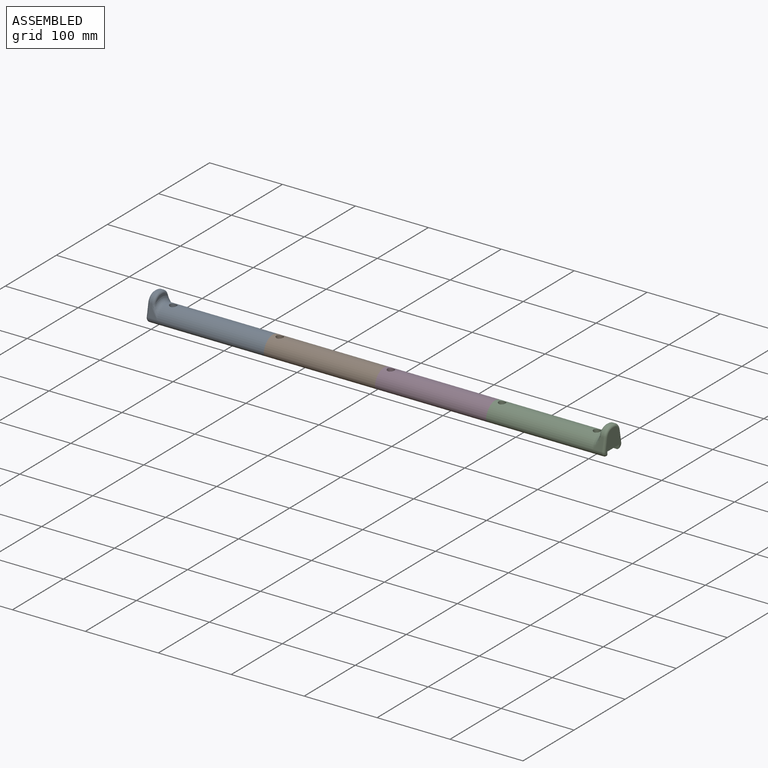
[diagram: assembled view]
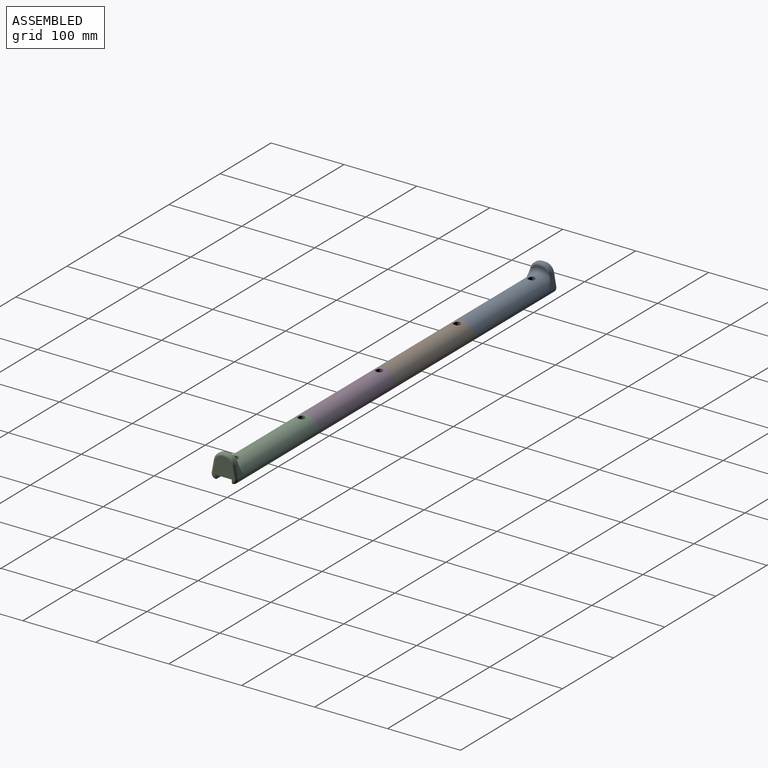
[diagram: assembled view, second angle]
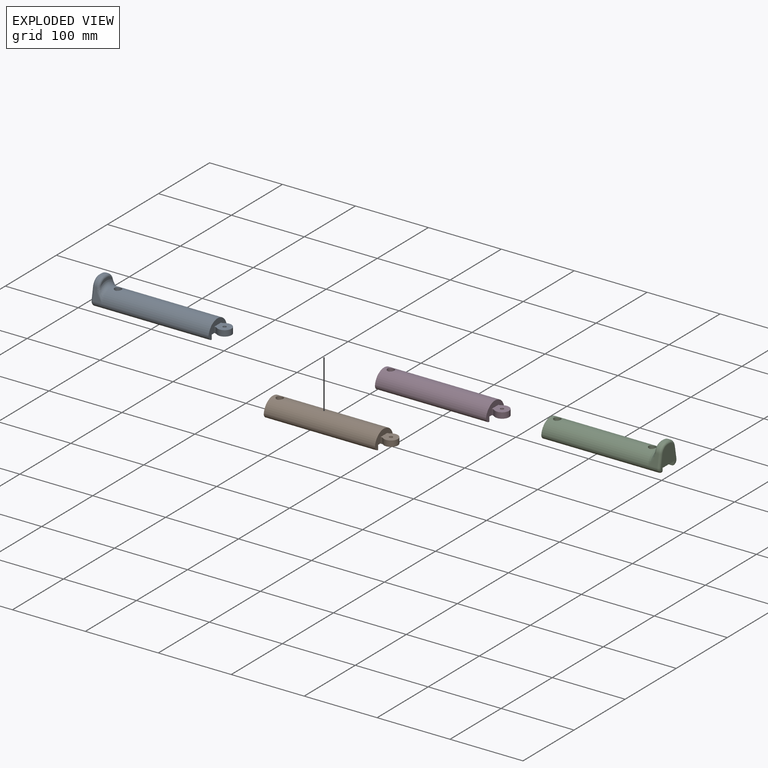
[diagram: exploded view]
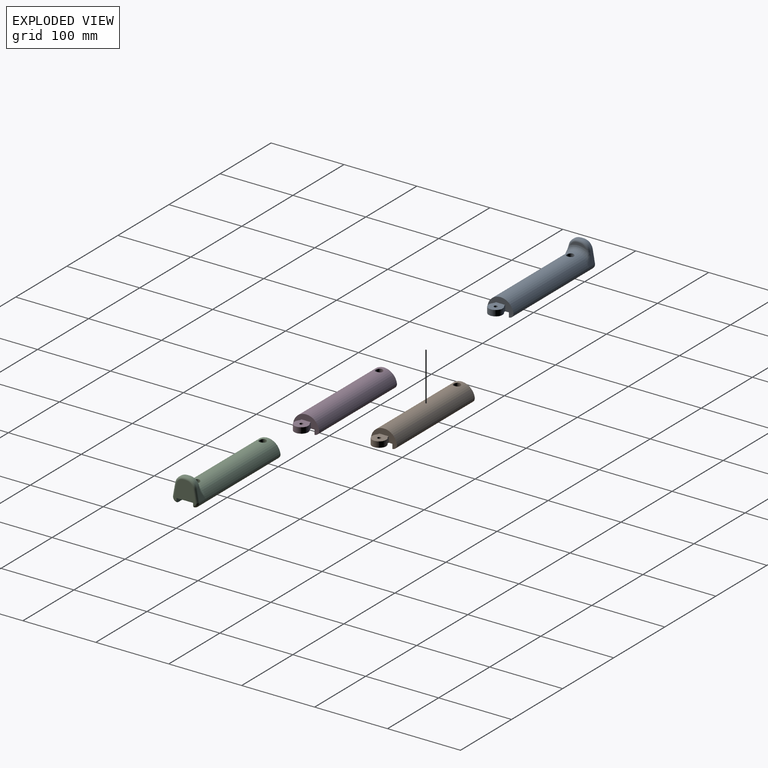
[diagram: exploded view, second angle]
ASSEMBLY  parts=4 mates=3
PART A: 37 faces, bbox 181x61.4x36.3 mm
  f0: cylinder r=6.35mm len=7.94mm, axis (0,0,1), area 32.4mm2, adj f2,f4,f9,f10
  f1: cylinder r=6.35mm len=7.94mm, axis (0,0,1), area 32.4mm2, adj f2,f4,f9,f10
  f2: cylinder r=9.53mm len=19.05mm, axis (0,0,1), area 334.8mm2, adj f0,f1,f4,f10
  f3: plane 161.93x6.35mm, normal (0,1,0), area 1026.1mm2, adj f4,f8,f9,f16,f27
  f4: plane 180.98x22.83mm, normal (0,0,-1), area 3957.8mm2, adj f0,f1,f2,f3,f5,f9,f16,f18
  f5: plane 161.93x6.35mm, normal (0,-1,0), area 1026.1mm2, adj f4,f6,f9,f16,f33
  f6: cylinder r=6.35mm len=158.75mm, axis (-1,0,0), area 1765.1mm2, adj f5,f7,f9,f11,f33
  f7: cylinder r=17.96mm len=146.05mm, axis (-1,0,0), area 7221.3mm2, adj f6,f8,f9,f19,f34
  f8: cylinder r=6.35mm len=158.75mm, axis (-1,0,0), area 1765.1mm2, adj f3,f7,f9,f12,f27
  f9: plane 35.53x22.23mm, normal (1,0,0), area 394.4mm2, adj f0,f1,f3,f4,f5,f6,f7,f8
  f10: plane 19.05x19.05mm, normal (0,0,1), area 278.1mm2, adj f0,f1,f2,f9,f18
  f11: plane 16.9x12.7mm, normal (0,0.98,0.18), area 120.2mm2, adj f6,f15,f26,f32
  f12: plane 16.9x12.7mm, normal (0,-0.98,0.18), area 120.2mm2, adj f8,f13,f20,f28
  f13: cylinder r=12.7mm len=11.01mm, axis (1,0,0), area 51.6mm2, adj f12,f14,f21,f22,f29
  f14: cylinder r=30.66mm len=7.15mm, axis (1,0,0), area 22.7mm2, adj f13,f15,f23,f30
  f15: cylinder r=12.7mm len=11.01mm, axis (1,0,0), area 51.6mm2, adj f11,f14,f24,f25,f31
  f16: plane 29.18x28.58mm, normal (-1,0,0), area 615mm2, adj f3,f4,f5,f27,f28,f29,f30,f31
  f17: plane 21.51x5.68mm, normal (1,0,0), area 56.6mm2, adj f19,f22,f23,f24
  f18: cylinder r=2.38mm len=7.94mm, axis (0,0,1), area 118.8mm2, adj f4,f10
  f19: torus R=24.31mm, axis (-1,0,0), area 336.9mm2, adj f7,f17,f20,f21,f25,f26
  f20: bspline ~18.98x9.53mm, area 46.1mm2, adj f12,f19,f21
  f21: bspline ~4.83x4.52mm, area 12.7mm2, adj f13,f19,f20,f22
  f22: torus R=9.53mm, axis (-1,0,0), area 59mm2, adj f13,f17,f21,f23
  f23: torus R=27.48mm, axis (-1,0,0), area 34.4mm2, adj f14,f17,f22,f24
  f24: torus R=9.53mm, axis (-1,0,0), area 59mm2, adj f15,f17,f23,f25
  f25: bspline ~5.99x5.16mm, area 12.7mm2, adj f15,f19,f24,f26
  f26: bspline ~18.58x9.52mm, area 46.1mm2, adj f11,f19,f25
  f27: torus R=3.17mm, axis (-1,0,0), area 45.4mm2, adj f3,f8,f16,f28
  f28: cylinder r=3.17mm len=17.46mm, axis (0,-0.18,-0.98), area 85.6mm2, adj f12,f16,f27,f29
  f29: torus R=9.53mm, axis (-1,0,0), area 73.3mm2, adj f13,f16,f28,f30
  f30: torus R=27.48mm, axis (-1,0,0), area 34.4mm2, adj f14,f16,f29,f31
  f31: torus R=9.53mm, axis (-1,0,0), area 73.3mm2, adj f15,f16,f30,f32
  f32: cylinder r=3.17mm len=17.46mm, axis (0,-0.18,0.98), area 85.6mm2, adj f11,f16,f31,f33
  f33: torus R=3.17mm, axis (-1,0,0), area 45.4mm2, adj f5,f6,f16,f32
  f34: cylinder r=4.76mm len=9.53mm, axis (0,0,1), area 132.9mm2, adj f7,f35
  f35: plane 9.53x9.53mm, normal (0,0,1), area 53.4mm2, adj f34,f36
  f36: cylinder r=2.38mm len=11.11mm, axis (0,0,1), area 166.3mm2, adj f4,f35
PART B: 20 faces, bbox 171.5x35.5x22.2 mm
  f0: cylinder r=6.35mm len=7.94mm, axis (0,0,1), area 32.4mm2, adj f2,f3,f10,f15
  f1: cylinder r=6.35mm len=7.94mm, axis (0,0,1), area 32.4mm2, adj f2,f3,f10,f15
  f2: cylinder r=9.53mm len=19.05mm, axis (0,0,1), area 334.8mm2, adj f0,f1,f3,f15
  f3: plane 171.45x22.83mm, normal (0,0,-1), area 3455.8mm2, adj f0,f1,f2,f4,f5,f6,f10,f11
  f4: plane 35.53x22.23mm, normal (-1,0,0), area 392.3mm2, adj f3,f5,f6,f7,f8,f9,f11,f12
  f5: plane 152.4x6.35mm, normal (0,1,0), area 967.7mm2, adj f3,f4,f9,f10
  f6: plane 152.4x6.35mm, normal (0,-1,0), area 967.7mm2, adj f3,f4,f7,f10
  f7: cylinder r=6.35mm len=152.4mm, axis (-1,0,0), area 1694.5mm2, adj f4,f6,f8,f10
  f8: cylinder r=17.96mm len=152.4mm, axis (-1,0,0), area 7538.4mm2, adj f4,f7,f9,f10,f17
  f9: cylinder r=6.35mm len=152.4mm, axis (-1,0,0), area 1694.5mm2, adj f4,f5,f8,f10
  f10: plane 35.53x22.23mm, normal (1,0,0), area 394.4mm2, adj f0,f1,f3,f5,f6,f7,f8,f9
  f11: cylinder r=6.22mm len=7.94mm, axis (0,0,-1), area 31.8mm2, adj f3,f4,f13,f14
  f12: cylinder r=6.22mm len=7.94mm, axis (0,0,-1), area 31.8mm2, adj f3,f4,f13,f14
  f13: plane 19.3x19.18mm, normal (0,0,-1), area 284.5mm2, adj f4,f11,f12,f14,f19
  f14: cylinder r=9.65mm len=19.3mm, axis (0,0,-1), area 339.3mm2, adj f3,f11,f12,f13
  f15: plane 19.05x19.05mm, normal (0,0,1), area 278.1mm2, adj f0,f1,f2,f10,f16
  f16: cylinder r=2.38mm len=7.94mm, axis (0,0,1), area 118.8mm2, adj f3,f15
  f17: cylinder r=4.76mm len=9.53mm, axis (0,0,1), area 132.9mm2, adj f8,f18
  f18: plane 9.53x9.53mm, normal (0,0,1), area 53.4mm2, adj f17,f19
  f19: cylinder r=2.38mm len=4.76mm, axis (0,0,1), area 47.5mm2, adj f13,f18
PART C: 39 faces, bbox 161.9x51.8x36.3 mm
  f0: cylinder r=2.38mm len=4.76mm, axis (0,0,1), area 47.5mm2, adj f10,f20
  f1: plane 161.93x22.83mm, normal (0,0,-1), area 3383.8mm2, adj f2,f3,f4,f8,f9,f11,f18,f38
  f2: plane 35.53x22.23mm, normal (-1,0,0), area 394.4mm2, adj f1,f3,f4,f5,f6,f7,f8,f9
  f3: plane 161.93x6.35mm, normal (0,1,0), area 1026.1mm2, adj f1,f2,f7,f18,f29
  f4: plane 161.93x6.35mm, normal (0,-1,0), area 1026.1mm2, adj f1,f2,f5,f18,f35
  f5: cylinder r=6.35mm len=158.75mm, axis (-1,0,0), area 1765.1mm2, adj f2,f4,f6,f13,f35
  f6: cylinder r=17.96mm len=146.05mm, axis (-1,0,0), area 7149.4mm2, adj f2,f5,f7,f19,f21,f36
  f7: cylinder r=6.35mm len=158.75mm, axis (-1,0,0), area 1765.1mm2, adj f2,f3,f6,f17,f29
  f8: cylinder r=6.35mm len=7.94mm, axis (0,0,-1), area 32.4mm2, adj f1,f2,f10,f11
  f9: cylinder r=6.35mm len=7.94mm, axis (0,0,-1), area 32.4mm2, adj f1,f2,f10,f11
  f10: plane 19.05x19.05mm, normal (0,0,-1), area 278.1mm2, adj f0,f2,f8,f9,f11
  f11: cylinder r=9.53mm len=19.05mm, axis (0,0,-1), area 334.8mm2, adj f1,f8,f9,f10
  f12: plane 21.51x5.68mm, normal (-1,0,0), area 56.6mm2, adj f21,f24,f25,f26
  f13: plane 16.9x12.7mm, normal (0,0.98,0.18), area 120.2mm2, adj f5,f14,f22,f34
  f14: cylinder r=12.7mm len=11.01mm, axis (-1,0,0), area 51.6mm2, adj f13,f15,f23,f24,f33
  f15: cylinder r=30.66mm len=7.15mm, axis (-1,0,0), area 22.7mm2, adj f14,f16,f25,f32
  f16: cylinder r=12.7mm len=11.01mm, axis (-1,0,0), area 51.6mm2, adj f15,f17,f26,f27,f31
  f17: plane 16.9x12.7mm, normal (0,-0.98,0.18), area 120.2mm2, adj f7,f16,f28,f30
  f18: plane 29.18x28.58mm, normal (1,0,0), area 615mm2, adj f1,f3,f4,f29,f30,f31,f32,f33
  f19: cylinder r=4.76mm len=9.53mm, axis (0,0,1), area 132.9mm2, adj f6,f20
  f20: plane 9.53x9.53mm, normal (0,0,1), area 53.4mm2, adj f0,f19
  f21: torus R=24.31mm, axis (1,0,0), area 336.9mm2, adj f6,f12,f22,f23,f27,f28
  f22: bspline ~18.98x9.53mm, area 46.1mm2, adj f13,f21,f23
  f23: bspline ~4.83x4.52mm, area 12.7mm2, adj f14,f21,f22,f24
  f24: torus R=9.53mm, axis (1,0,0), area 59mm2, adj f12,f14,f23,f25
  f25: torus R=27.48mm, axis (1,0,0), area 34.4mm2, adj f12,f15,f24,f26
  f26: torus R=9.53mm, axis (1,0,0), area 59mm2, adj f12,f16,f25,f27
  f27: bspline ~7.66x5.28mm, area 12.7mm2, adj f16,f21,f26,f28
  f28: bspline ~18.58x9.52mm, area 46.1mm2, adj f17,f21,f27
  f29: torus R=3.17mm, axis (1,0,0), area 45.4mm2, adj f3,f7,f18,f30
  f30: cylinder r=3.17mm len=17.46mm, axis (0,0.18,0.98), area 85.6mm2, adj f17,f18,f29,f31
  f31: torus R=9.53mm, axis (1,0,0), area 73.3mm2, adj f16,f18,f30,f32
  f32: torus R=27.48mm, axis (1,0,0), area 34.4mm2, adj f15,f18,f31,f33
  f33: torus R=9.53mm, axis (1,0,0), area 73.3mm2, adj f14,f18,f32,f34
  f34: cylinder r=3.17mm len=17.46mm, axis (0,0.18,-0.98), area 85.6mm2, adj f13,f18,f33,f35
  f35: torus R=3.17mm, axis (1,0,0), area 45.4mm2, adj f4,f5,f18,f34
  f36: cylinder r=4.76mm len=9.53mm, axis (0,0,1), area 132.9mm2, adj f6,f37
  f37: plane 9.53x9.53mm, normal (0,0,1), area 53.4mm2, adj f36,f38
  f38: cylinder r=2.38mm len=11.11mm, axis (0,0,1), area 166.3mm2, adj f1,f37
PART D: same geometry as B
PLACE A t=(-214.51,-21.75,3.39)mm
PLACE B t=(-62.11,-21.75,3.39)mm fixed
PLACE C t=(233.17,-21.75,3.39)mm
PLACE D t=(90.29,-21.75,3.39)mm
MATE fastened D.f14 <-> B.f2  axis (0,0,-1) through (14.09,-21.75,16.39)mm
MATE fastened C.f11 <-> D.f2  axis (0,0,-1) through (166.49,-21.75,16.39)mm
MATE fastened B.f14 <-> A.f2  axis (0,0,-1) through (-138.31,-21.75,16.39)mm
